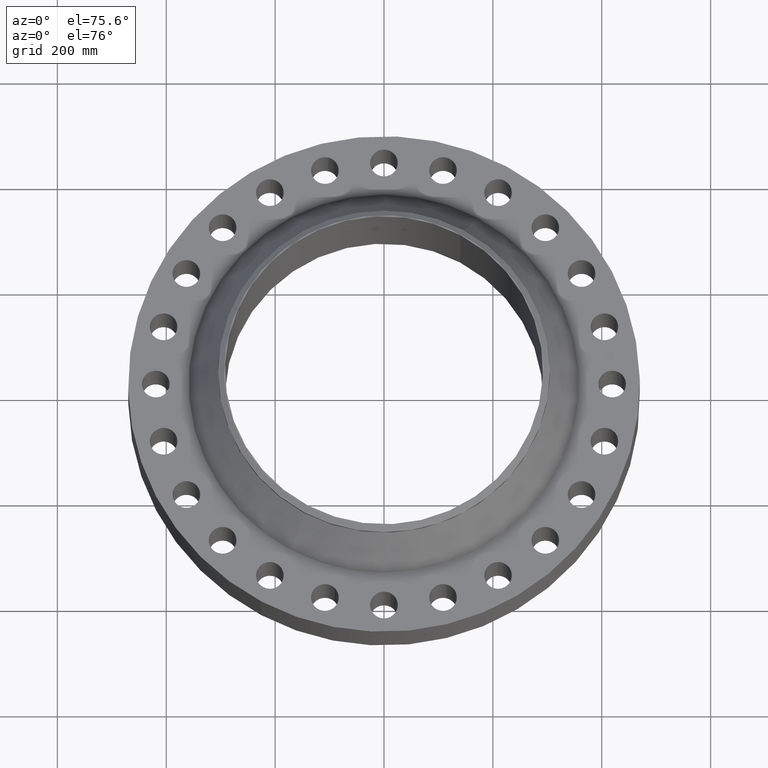
[diagram: clean part render]
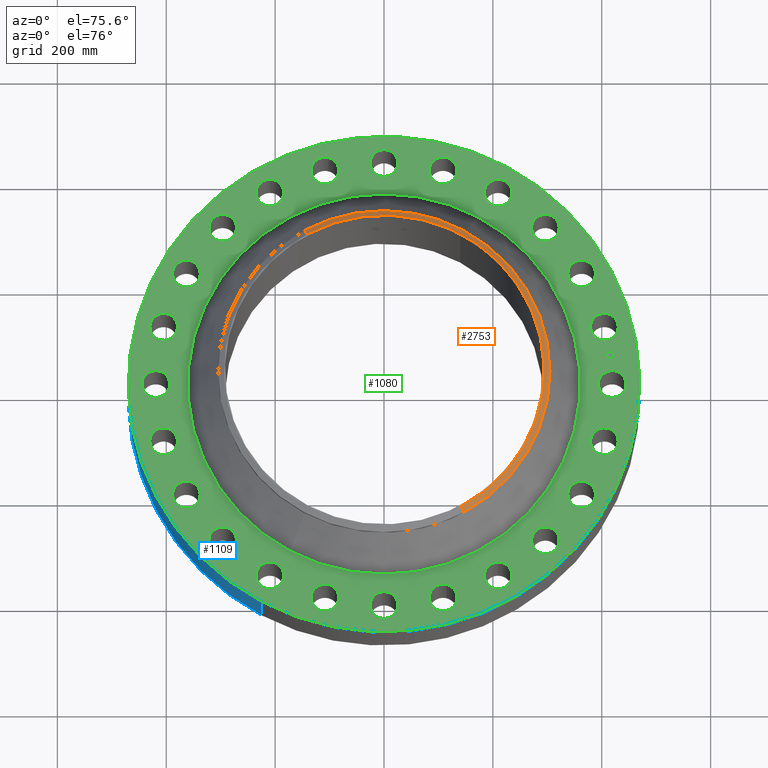
[diagram: same view with three faces highlighted in distinct colors, each labeled with its STEP entity id]
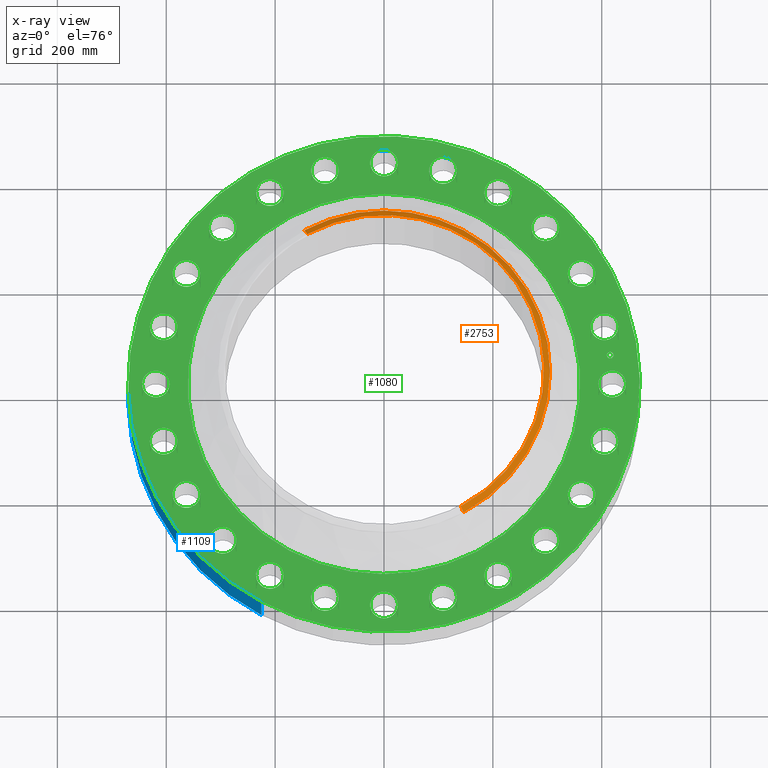
[diagram: x-ray of the same camera — body ghosted, the three highlighted faces saturated]
A machine part, auxiliary view with three faces highlighted in distinct colors.
The next image is the same camera in x-ray (body ghosted, the three faces saturated) — at least one of them is partly hidden behind the body in this view.
Their STEP definitions:

[orange] entity #2753 — the highlighted conical surface has half-angle 52.5 deg.
#2446=AXIS2_PLACEMENT_3D('Circle Axis2P3D',#2444,#2445,$) ;
#2718=AXIS2_PLACEMENT_3D('Cone Axis2P3D',#2715,#2716,#2717) ;
#2736=AXIS2_PLACEMENT_3D('Circle Axis2P3D',#2734,#2735,$) ;
#2743=AXIS2_PLACEMENT_3D('Circle Axis2P3D',#2741,#2742,$) ;
#2444=CARTESIAN_POINT('Axis2P3D Location',(-4.36656485248E-011,-1.65226362775E-011,8.00000000003)) ;
#2448=CARTESIAN_POINT('Vertex',(5.55114373638,-10.1613004509,8.00000000002)) ;
#2450=CARTESIAN_POINT('Vertex',(-5.55114373637,10.1613004509,8.00000000003)) ;
#2715=CARTESIAN_POINT('Axis2P3D Location',(0.,0.,8.00000000003)) ;
#2720=CARTESIAN_POINT('Line Origine',(-5.65212509982,10.3461455968,7.83837797697)) ;
#2724=CARTESIAN_POINT('Vertex',(-5.75310646326,10.5309907427,7.67675595391)) ;
#2727=CARTESIAN_POINT('Line Origine',(5.65212509982,-10.3461455968,7.83837797697)) ;
#2731=CARTESIAN_POINT('Vertex',(5.75310646326,-10.5309907427,7.67675595391)) ;
#2734=CARTESIAN_POINT('Axis2P3D Location',(0.,0.,7.67675595392)) ;
#2738=CARTESIAN_POINT('Vertex',(5.75310646325,10.5309907427,7.67675595391)) ;
#2741=CARTESIAN_POINT('Axis2P3D Location',(0.,0.,7.67675595392)) ;
#2445=DIRECTION('Axis2P3D Direction',(0.,0.,-0.0393700787402)) ;
#2716=DIRECTION('Axis2P3D Direction',(-0.,-0.,-0.0393700787402)) ;
#2717=DIRECTION('Axis2P3D XDirection',(-0.0188750212049,0.0345504945626,0.)) ;
#2721=DIRECTION('Vector Direction',(-0.014974561121,0.02741075027,-0.023966985394)) ;
#2728=DIRECTION('Vector Direction',(0.014974561121,-0.02741075027,-0.023966985394)) ;
#2735=DIRECTION('Axis2P3D Direction',(-0.,0.,-0.0393700787402)) ;
#2742=DIRECTION('Axis2P3D Direction',(-0.,0.,-0.0393700787402)) ;
#2722=VECTOR('Line Direction',#2721,0.0393700787402) ;
#2729=VECTOR('Line Direction',#2728,0.0393700787402) ;
#2747=ORIENTED_EDGE('',*,*,#2726,.F.) ;
#2748=ORIENTED_EDGE('',*,*,#2452,.F.) ;
#2749=ORIENTED_EDGE('',*,*,#2733,.T.) ;
#2750=ORIENTED_EDGE('',*,*,#2740,.T.) ;
#2751=ORIENTED_EDGE('',*,*,#2745,.F.) ;
#2753=ADVANCED_FACE('PartBody',(#2752),#2719,.T.) ;
#2447=CIRCLE('generated circle',#2446,11.5787401575) ;
#2737=CIRCLE('generated circle',#2736,12.) ;
#2744=CIRCLE('generated circle',#2743,12.) ;
#2719=CONICAL_SURFACE('Cone',#2718,11.5787401575,0.916297857297) ;
#2452=EDGE_CURVE('',#2449,#2451,#2447,.F.) ;
#2726=EDGE_CURVE('',#2451,#2725,#2723,.T.) ;
#2733=EDGE_CURVE('',#2449,#2732,#2730,.T.) ;
#2740=EDGE_CURVE('',#2732,#2739,#2737,.F.) ;
#2745=EDGE_CURVE('',#2725,#2739,#2744,.T.) ;
#2746=EDGE_LOOP('',(#2747,#2748,#2749,#2750,#2751)) ;
#2752=FACE_OUTER_BOUND('',#2746,.T.) ;
#2723=LINE('Line',#2720,#2722) ;
#2730=LINE('Line',#2727,#2729) ;
#2449=VERTEX_POINT('',#2448) ;
#2451=VERTEX_POINT('',#2450) ;
#2725=VERTEX_POINT('',#2724) ;
#2732=VERTEX_POINT('',#2731) ;
#2739=VERTEX_POINT('',#2738) ;

[blue] entity #1109 — the highlighted cylindrical surface (partial cylindrical patch) has radius 469.9 mm, axis along (0, 0, -1).
#143=AXIS2_PLACEMENT_3D('Circle Axis2P3D',#141,#142,$) ;
#619=AXIS2_PLACEMENT_3D('Circle Axis2P3D',#617,#618,$) ;
#1091=AXIS2_PLACEMENT_3D('Cylinder Axis2P3D',#1088,#1089,#1090) ;
#141=CARTESIAN_POINT('Axis2P3D Location',(2.23792987641E-015,1.466739241E-011,0.)) ;
#145=CARTESIAN_POINT('Vertex',(-8.86937246424,-16.2352773951,3.46649743031E-011)) ;
#147=CARTESIAN_POINT('Vertex',(8.86937246423,16.2352773951,3.46649743031E-011)) ;
#612=CARTESIAN_POINT('Vertex',(8.86937246423,16.2352773951,4.00000000002)) ;
#614=CARTESIAN_POINT('Vertex',(-8.86937246423,-16.2352773951,4.00000000002)) ;
#617=CARTESIAN_POINT('Axis2P3D Location',(2.23792987641E-015,1.19997799973E-011,4.00000000002)) ;
#1088=CARTESIAN_POINT('Axis2P3D Location',(0.,0.,4.00000000002)) ;
#1093=CARTESIAN_POINT('Line Origine',(-8.86937246423,-16.2352773951,2.00000000003)) ;
#1098=CARTESIAN_POINT('Line Origine',(8.86937246423,16.2352773951,2.00000000003)) ;
#142=DIRECTION('Axis2P3D Direction',(0.,0.,-0.0393700787402)) ;
#618=DIRECTION('Axis2P3D Direction',(0.,0.,-0.0393700787402)) ;
#1089=DIRECTION('Axis2P3D Direction',(0.,0.,-0.0393700787402)) ;
#1090=DIRECTION('Axis2P3D XDirection',(-0.0188750212049,-0.0345504945626,0.)) ;
#1094=DIRECTION('Vector Direction',(0.,0.,-0.0393700787402)) ;
#1099=DIRECTION('Vector Direction',(0.,0.,-0.0393700787402)) ;
#1095=VECTOR('Line Direction',#1094,0.0393700787402) ;
#1100=VECTOR('Line Direction',#1099,0.0393700787402) ;
#1104=ORIENTED_EDGE('',*,*,#149,.F.) ;
#1105=ORIENTED_EDGE('',*,*,#1097,.T.) ;
#1106=ORIENTED_EDGE('',*,*,#621,.T.) ;
#1107=ORIENTED_EDGE('',*,*,#1102,.F.) ;
#1109=ADVANCED_FACE('PartBody',(#1108),#1092,.T.) ;
#144=CIRCLE('generated circle',#143,18.5000000001) ;
#620=CIRCLE('generated circle',#619,18.5000000001) ;
#1092=CYLINDRICAL_SURFACE('generated cylinder',#1091,18.5000000001) ;
#149=EDGE_CURVE('',#146,#148,#144,.T.) ;
#621=EDGE_CURVE('',#615,#613,#620,.T.) ;
#1097=EDGE_CURVE('',#146,#615,#1096,.F.) ;
#1102=EDGE_CURVE('',#148,#613,#1101,.F.) ;
#1103=EDGE_LOOP('',(#1104,#1105,#1106,#1107)) ;
#1108=FACE_OUTER_BOUND('',#1103,.T.) ;
#1096=LINE('Line',#1093,#1095) ;
#1101=LINE('Line',#1098,#1100) ;
#146=VERTEX_POINT('',#145) ;
#148=VERTEX_POINT('',#147) ;
#613=VERTEX_POINT('',#612) ;
#615=VERTEX_POINT('',#614) ;

[green] entity #1080 — the highlighted planar face has unit normal (0, 0, -1).
#119=AXIS2_PLACEMENT_3D('Circle Axis2P3D',#117,#118,$) ;
#606=AXIS2_PLACEMENT_3D('Plane Axis2P3D',#603,#604,#605) ;
#610=AXIS2_PLACEMENT_3D('Circle Axis2P3D',#608,#609,$) ;
#619=AXIS2_PLACEMENT_3D('Circle Axis2P3D',#617,#618,$) ;
#632=AXIS2_PLACEMENT_3D('Circle Axis2P3D',#630,#631,$) ;
#641=AXIS2_PLACEMENT_3D('Circle Axis2P3D',#639,#640,$) ;
#650=AXIS2_PLACEMENT_3D('Circle Axis2P3D',#648,#649,$) ;
#659=AXIS2_PLACEMENT_3D('Circle Axis2P3D',#657,#658,$) ;
#668=AXIS2_PLACEMENT_3D('Circle Axis2P3D',#666,#667,$) ;
#677=AXIS2_PLACEMENT_3D('Circle Axis2P3D',#675,#676,$) ;
#686=AXIS2_PLACEMENT_3D('Circle Axis2P3D',#684,#685,$) ;
#695=AXIS2_PLACEMENT_3D('Circle Axis2P3D',#693,#694,$) ;
#704=AXIS2_PLACEMENT_3D('Circle Axis2P3D',#702,#703,$) ;
#713=AXIS2_PLACEMENT_3D('Circle Axis2P3D',#711,#712,$) ;
#722=AXIS2_PLACEMENT_3D('Circle Axis2P3D',#720,#721,$) ;
#731=AXIS2_PLACEMENT_3D('Circle Axis2P3D',#729,#730,$) ;
#740=AXIS2_PLACEMENT_3D('Circle Axis2P3D',#738,#739,$) ;
#749=AXIS2_PLACEMENT_3D('Circle Axis2P3D',#747,#748,$) ;
#758=AXIS2_PLACEMENT_3D('Circle Axis2P3D',#756,#757,$) ;
#767=AXIS2_PLACEMENT_3D('Circle Axis2P3D',#765,#766,$) ;
#776=AXIS2_PLACEMENT_3D('Circle Axis2P3D',#774,#775,$) ;
#785=AXIS2_PLACEMENT_3D('Circle Axis2P3D',#783,#784,$) ;
#794=AXIS2_PLACEMENT_3D('Circle Axis2P3D',#792,#793,$) ;
#803=AXIS2_PLACEMENT_3D('Circle Axis2P3D',#801,#802,$) ;
#812=AXIS2_PLACEMENT_3D('Circle Axis2P3D',#810,#811,$) ;
#821=AXIS2_PLACEMENT_3D('Circle Axis2P3D',#819,#820,$) ;
#830=AXIS2_PLACEMENT_3D('Circle Axis2P3D',#828,#829,$) ;
#839=AXIS2_PLACEMENT_3D('Circle Axis2P3D',#837,#838,$) ;
#848=AXIS2_PLACEMENT_3D('Circle Axis2P3D',#846,#847,$) ;
#857=AXIS2_PLACEMENT_3D('Circle Axis2P3D',#855,#856,$) ;
#866=AXIS2_PLACEMENT_3D('Circle Axis2P3D',#864,#865,$) ;
#875=AXIS2_PLACEMENT_3D('Circle Axis2P3D',#873,#874,$) ;
#884=AXIS2_PLACEMENT_3D('Circle Axis2P3D',#882,#883,$) ;
#893=AXIS2_PLACEMENT_3D('Circle Axis2P3D',#891,#892,$) ;
#902=AXIS2_PLACEMENT_3D('Circle Axis2P3D',#900,#901,$) ;
#911=AXIS2_PLACEMENT_3D('Circle Axis2P3D',#909,#910,$) ;
#920=AXIS2_PLACEMENT_3D('Circle Axis2P3D',#918,#919,$) ;
#929=AXIS2_PLACEMENT_3D('Circle Axis2P3D',#927,#928,$) ;
#938=AXIS2_PLACEMENT_3D('Circle Axis2P3D',#936,#937,$) ;
#947=AXIS2_PLACEMENT_3D('Circle Axis2P3D',#945,#946,$) ;
#956=AXIS2_PLACEMENT_3D('Circle Axis2P3D',#954,#955,$) ;
#965=AXIS2_PLACEMENT_3D('Circle Axis2P3D',#963,#964,$) ;
#974=AXIS2_PLACEMENT_3D('Circle Axis2P3D',#972,#973,$) ;
#983=AXIS2_PLACEMENT_3D('Circle Axis2P3D',#981,#982,$) ;
#992=AXIS2_PLACEMENT_3D('Circle Axis2P3D',#990,#991,$) ;
#1001=AXIS2_PLACEMENT_3D('Circle Axis2P3D',#999,#1000,$) ;
#1010=AXIS2_PLACEMENT_3D('Circle Axis2P3D',#1008,#1009,$) ;
#1019=AXIS2_PLACEMENT_3D('Circle Axis2P3D',#1017,#1018,$) ;
#1028=AXIS2_PLACEMENT_3D('Circle Axis2P3D',#1026,#1027,$) ;
#1037=AXIS2_PLACEMENT_3D('Circle Axis2P3D',#1035,#1036,$) ;
#1046=AXIS2_PLACEMENT_3D('Circle Axis2P3D',#1044,#1045,$) ;
#1055=AXIS2_PLACEMENT_3D('Circle Axis2P3D',#1053,#1054,$) ;
#1064=AXIS2_PLACEMENT_3D('Circle Axis2P3D',#1062,#1063,$) ;
#1073=AXIS2_PLACEMENT_3D('Circle Axis2P3D',#1071,#1072,$) ;
#46=CARTESIAN_POINT('Vertex',(15.6224174382,0.479425538605,4.)) ;
#72=CARTESIAN_POINT('Vertex',(17.377582562,-0.479425538583,4.00000000002)) ;
#76=CARTESIAN_POINT('Control Point',(15.6224174382,0.479425538605,4.00000000002)) ;
#77=CARTESIAN_POINT('Control Point',(15.6977254257,0.617275885072,4.00000000002)) ;
#78=CARTESIAN_POINT('Control Point',(15.8001002654,0.740339542771,4.00000000002)) ;
#79=CARTESIAN_POINT('Control Point',(15.925692449,0.841506455051,4.00000000002)) ;
#80=CARTESIAN_POINT('Control Point',(16.2097770821,0.989144552644,4.00000000001)) ;
#81=CARTESIAN_POINT('Control Point',(16.5285952626,1.0184029596,4.00000000001)) ;
#82=CARTESIAN_POINT('Control Point',(16.688938157,1.00113168466,4.00000000001)) ;
#83=CARTESIAN_POINT('Control Point',(16.9942122275,0.904649414126,4.00000000001)) ;
#84=CARTESIAN_POINT('Control Point',(17.2403395429,0.699899734654,4.00000000001)) ;
#85=CARTESIAN_POINT('Control Point',(17.3415064552,0.574307551114,4.00000000001)) ;
#86=CARTESIAN_POINT('Control Point',(17.4891445527,0.290222918006,4.)) ;
#87=CARTESIAN_POINT('Control Point',(17.5184029597,-0.0285952625476,4.)) ;
#88=CARTESIAN_POINT('Control Point',(17.5011316848,-0.188938156898,4.)) ;
#89=CARTESIAN_POINT('Control Point',(17.4528905495,-0.341575192134,4.)) ;
#90=CARTESIAN_POINT('Control Point',(17.377582562,-0.479425538602,4.)) ;
#117=CARTESIAN_POINT('Axis2P3D Location',(16.5000000001,0.,4.)) ;
#603=CARTESIAN_POINT('Axis2P3D Location',(0.,18.5000000001,4.00000000002)) ;
#608=CARTESIAN_POINT('Axis2P3D Location',(-2.23792987641E-015,1.19997799973E-011,4.00000000002)) ;
#612=CARTESIAN_POINT('Vertex',(8.86937246423,16.2352773951,4.00000000002)) ;
#614=CARTESIAN_POINT('Vertex',(-8.86937246423,-16.2352773951,4.00000000002)) ;
#617=CARTESIAN_POINT('Axis2P3D Location',(2.23792987641E-015,1.19997799973E-011,4.00000000002)) ;
#630=CARTESIAN_POINT('Axis2P3D Location',(-1.1189649382E-015,1.19997799973E-011,4.00000000002)) ;
#634=CARTESIAN_POINT('Vertex',(-6.80397225279,-12.4545876676,4.00000000002)) ;
#636=CARTESIAN_POINT('Vertex',(6.80397225284,12.4545876677,4.00000000002)) ;
#639=CARTESIAN_POINT('Axis2P3D Location',(1.1189649382E-015,1.19997799973E-011,4.00000000002)) ;
#648=CARTESIAN_POINT('Axis2P3D Location',(15.9377761338,-4.27051424422,4.00000000002)) ;
#652=CARTESIAN_POINT('Vertex',(16.661371335,-4.96073883436,4.)) ;
#654=CARTESIAN_POINT('Vertex',(15.2141809327,-3.58028965402,4.)) ;
#657=CARTESIAN_POINT('Axis2P3D Location',(15.9377761338,-4.27051424422,4.00000000002)) ;
#666=CARTESIAN_POINT('Axis2P3D Location',(14.2894191625,-8.25000000005,4.00000000002)) ;
#670=CARTESIAN_POINT('Vertex',(14.8097151857,-9.10398597663,4.)) ;
#672=CARTESIAN_POINT('Vertex',(13.7691231393,-7.39601402343,4.)) ;
#675=CARTESIAN_POINT('Axis2P3D Location',(14.2894191625,-8.25000000003,4.00000000002)) ;
#684=CARTESIAN_POINT('Axis2P3D Location',(11.6672618896,-11.6672618896,4.00000000002)) ;
#688=CARTESIAN_POINT('Vertex',(11.9488014208,-12.6268115196,4.)) ;
#690=CARTESIAN_POINT('Vertex',(11.3857223585,-10.7077122596,4.)) ;
#693=CARTESIAN_POINT('Axis2P3D Location',(11.6672618896,-11.6672618896,4.00000000002)) ;
#702=CARTESIAN_POINT('Axis2P3D Location',(8.24999999999,-14.2894191625,4.00000000002)) ;
#706=CARTESIAN_POINT('Vertex',(8.27359658532,-15.2891407243,4.)) ;
#708=CARTESIAN_POINT('Vertex',(8.22640341474,-13.2896976007,4.)) ;
#711=CARTESIAN_POINT('Axis2P3D Location',(8.25000000007,-14.2894191625,4.00000000002)) ;
#720=CARTESIAN_POINT('Axis2P3D Location',(4.2705142442,-15.9377761338,4.00000000002)) ;
#724=CARTESIAN_POINT('Vertex',(4.03455981537,-16.9095402551,4.)) ;
#726=CARTESIAN_POINT('Vertex',(4.50646867306,-14.9660120125,4.)) ;
#729=CARTESIAN_POINT('Axis2P3D Location',(4.2705142442,-15.9377761338,4.00000000002)) ;
#738=CARTESIAN_POINT('Axis2P3D Location',(-2.79741234551E-016,-16.5000000001,4.00000000002)) ;
#742=CARTESIAN_POINT('Vertex',(-0.479425538595,-17.377582562,4.00000000002)) ;
#744=CARTESIAN_POINT('Vertex',(0.479425538605,-15.6224174382,4.)) ;
#747=CARTESIAN_POINT('Axis2P3D Location',(2.79741234551E-016,-16.5000000001,4.00000000002)) ;
#756=CARTESIAN_POINT('Axis2P3D Location',(-4.27051424423,-15.9377761338,4.00000000002)) ;
#760=CARTESIAN_POINT('Vertex',(-4.96073883436,-16.661371335,4.)) ;
#762=CARTESIAN_POINT('Vertex',(-3.58028965402,-15.2141809327,4.)) ;
#765=CARTESIAN_POINT('Axis2P3D Location',(-4.27051424423,-15.9377761338,4.00000000002)) ;
#774=CARTESIAN_POINT('Axis2P3D Location',(-8.25000000004,-14.2894191625,4.00000000002)) ;
#778=CARTESIAN_POINT('Vertex',(-9.10398597663,-14.8097151857,4.)) ;
#780=CARTESIAN_POINT('Vertex',(-7.39601402343,-13.7691231393,4.)) ;
#783=CARTESIAN_POINT('Axis2P3D Location',(-8.25000000002,-14.2894191625,4.00000000002)) ;
#792=CARTESIAN_POINT('Axis2P3D Location',(-11.6672618896,-11.6672618896,4.00000000002)) ;
#796=CARTESIAN_POINT('Vertex',(-12.6268115196,-11.9488014208,4.)) ;
#798=CARTESIAN_POINT('Vertex',(-10.7077122596,-11.3857223585,4.)) ;
#801=CARTESIAN_POINT('Axis2P3D Location',(-11.6672618896,-11.6672618896,4.00000000002)) ;
#810=CARTESIAN_POINT('Axis2P3D Location',(-14.2894191625,-8.25000000009,4.00000000002)) ;
#814=CARTESIAN_POINT('Vertex',(-15.2891407243,-8.27359658532,4.)) ;
#816=CARTESIAN_POINT('Vertex',(-13.2896976007,-8.22640341474,4.)) ;
#819=CARTESIAN_POINT('Axis2P3D Location',(-14.2894191625,-8.25000000002,4.00000000002)) ;
#828=CARTESIAN_POINT('Axis2P3D Location',(-15.9377761338,-4.27051424417,4.00000000002)) ;
#832=CARTESIAN_POINT('Vertex',(-16.9095402551,-4.03455981537,4.)) ;
#834=CARTESIAN_POINT('Vertex',(-14.9660120125,-4.50646867306,4.)) ;
#837=CARTESIAN_POINT('Axis2P3D Location',(-15.9377761338,-4.27051424424,4.00000000002)) ;
#846=CARTESIAN_POINT('Axis2P3D Location',(-16.5000000001,-8.12368545137E-013,4.00000000002)) ;
#850=CARTESIAN_POINT('Vertex',(-17.377582562,0.479425538607,4.00000000002)) ;
#852=CARTESIAN_POINT('Vertex',(-15.6224174382,-0.479425538605,4.)) ;
#855=CARTESIAN_POINT('Axis2P3D Location',(-16.5000000001,2.48119285398E-011,4.00000000002)) ;
#864=CARTESIAN_POINT('Axis2P3D Location',(-15.9377761338,4.27051424424,4.00000000002)) ;
#868=CARTESIAN_POINT('Vertex',(-16.661371335,4.96073883436,4.)) ;
#870=CARTESIAN_POINT('Vertex',(-15.2141809327,3.58028965402,4.)) ;
#873=CARTESIAN_POINT('Axis2P3D Location',(-15.9377761338,4.27051424424,4.00000000002)) ;
#882=CARTESIAN_POINT('Axis2P3D Location',(-14.2894191625,8.25,4.00000000002)) ;
#886=CARTESIAN_POINT('Vertex',(-14.8097151857,9.10398597663,4.)) ;
#888=CARTESIAN_POINT('Vertex',(-13.7691231393,7.39601402343,4.)) ;
#891=CARTESIAN_POINT('Axis2P3D Location',(-14.2894191625,8.25,4.00000000002)) ;
#900=CARTESIAN_POINT('Axis2P3D Location',(-11.6672618896,11.6672618896,4.00000000002)) ;
#904=CARTESIAN_POINT('Vertex',(-11.9488014208,12.6268115196,4.)) ;
#906=CARTESIAN_POINT('Vertex',(-11.3857223585,10.7077122596,4.)) ;
#909=CARTESIAN_POINT('Axis2P3D Location',(-11.6672618896,11.6672618896,4.00000000002)) ;
#918=CARTESIAN_POINT('Axis2P3D Location',(-8.25000000003,14.2894191625,4.00000000002)) ;
#922=CARTESIAN_POINT('Vertex',(-8.27359658532,15.2891407243,4.)) ;
#924=CARTESIAN_POINT('Vertex',(-8.22640341474,13.2896976007,4.)) ;
#927=CARTESIAN_POINT('Axis2P3D Location',(-8.25000000003,14.2894191625,4.00000000002)) ;
#936=CARTESIAN_POINT('Axis2P3D Location',(-4.27051424419,15.9377761338,4.00000000002)) ;
#940=CARTESIAN_POINT('Vertex',(-4.03455981537,16.9095402551,4.)) ;
#942=CARTESIAN_POINT('Vertex',(-4.50646867306,14.9660120125,4.)) ;
#945=CARTESIAN_POINT('Axis2P3D Location',(-4.27051424419,15.9377761338,4.00000000002)) ;
#954=CARTESIAN_POINT('Axis2P3D Location',(2.79741234551E-016,16.5000000001,4.00000000002)) ;
#958=CARTESIAN_POINT('Vertex',(0.479425538595,17.377582562,4.00000000002)) ;
#960=CARTESIAN_POINT('Vertex',(-0.479425538605,15.6224174382,4.)) ;
#963=CARTESIAN_POINT('Axis2P3D Location',(-2.79741234551E-016,16.5000000001,4.00000000002)) ;
#972=CARTESIAN_POINT('Axis2P3D Location',(4.27051424419,15.9377761338,4.00000000002)) ;
#976=CARTESIAN_POINT('Vertex',(4.96073883436,16.661371335,4.)) ;
#978=CARTESIAN_POINT('Vertex',(3.58028965402,15.2141809327,4.)) ;
#981=CARTESIAN_POINT('Axis2P3D Location',(4.27051424423,15.9377761338,4.00000000002)) ;
#990=CARTESIAN_POINT('Axis2P3D Location',(8.25000000003,14.2894191625,4.00000000002)) ;
#994=CARTESIAN_POINT('Vertex',(9.10398597663,14.8097151857,4.)) ;
#996=CARTESIAN_POINT('Vertex',(7.39601402343,13.7691231393,4.)) ;
#999=CARTESIAN_POINT('Axis2P3D Location',(8.25000000003,14.2894191625,4.00000000002)) ;
#1008=CARTESIAN_POINT('Axis2P3D Location',(11.6672618896,11.6672618896,4.00000000002)) ;
#1012=CARTESIAN_POINT('Vertex',(12.6268115196,11.9488014208,4.)) ;
#1014=CARTESIAN_POINT('Vertex',(10.7077122596,11.3857223585,4.)) ;
#1017=CARTESIAN_POINT('Axis2P3D Location',(11.6672618896,11.6672618896,4.00000000002)) ;
#1026=CARTESIAN_POINT('Axis2P3D Location',(14.2894191625,8.25000000004,4.00000000002)) ;
#1030=CARTESIAN_POINT('Vertex',(15.2891407243,8.27359658532,4.)) ;
#1032=CARTESIAN_POINT('Vertex',(13.2896976007,8.22640341474,4.)) ;
#1035=CARTESIAN_POINT('Axis2P3D Location',(14.2894191625,8.24999999997,4.00000000002)) ;
#1044=CARTESIAN_POINT('Axis2P3D Location',(15.9377761338,4.2705142442,4.00000000002)) ;
#1048=CARTESIAN_POINT('Vertex',(16.9095402551,4.03455981537,4.)) ;
#1050=CARTESIAN_POINT('Vertex',(14.9660120125,4.50646867306,4.)) ;
#1053=CARTESIAN_POINT('Axis2P3D Location',(15.9377761338,4.2705142442,4.00000000002)) ;
#1062=CARTESIAN_POINT('Axis2P3D Location',(16.3588402127,2.15368217166,4.00000000002)) ;
#1066=CARTESIAN_POINT('Vertex',(16.3265349802,2.39906477486,4.00000000002)) ;
#1068=CARTESIAN_POINT('Vertex',(16.3911454453,1.90829956847,4.00000000002)) ;
#1071=CARTESIAN_POINT('Axis2P3D Location',(16.3588402127,2.15368217166,4.00000000002)) ;
#118=DIRECTION('Axis2P3D Direction',(0.,-0.,-0.0393700787402)) ;
#604=DIRECTION('Axis2P3D Direction',(0.,0.,-0.0393700787402)) ;
#605=DIRECTION('Axis2P3D XDirection',(0.0393700787402,0.,0.)) ;
#609=DIRECTION('Axis2P3D Direction',(0.,0.,-0.0393700787402)) ;
#618=DIRECTION('Axis2P3D Direction',(0.,0.,-0.0393700787402)) ;
#631=DIRECTION('Axis2P3D Direction',(0.,0.,-0.0393700787402)) ;
#640=DIRECTION('Axis2P3D Direction',(0.,0.,-0.0393700787402)) ;
#649=DIRECTION('Axis2P3D Direction',(0.,0.,-0.0393700787402)) ;
#658=DIRECTION('Axis2P3D Direction',(0.,0.,-0.0393700787402)) ;
#667=DIRECTION('Axis2P3D Direction',(0.,0.,-0.0393700787402)) ;
#676=DIRECTION('Axis2P3D Direction',(0.,0.,-0.0393700787402)) ;
#685=DIRECTION('Axis2P3D Direction',(0.,0.,-0.0393700787402)) ;
#694=DIRECTION('Axis2P3D Direction',(0.,0.,-0.0393700787402)) ;
#703=DIRECTION('Axis2P3D Direction',(0.,0.,-0.0393700787402)) ;
#712=DIRECTION('Axis2P3D Direction',(0.,0.,-0.0393700787402)) ;
#721=DIRECTION('Axis2P3D Direction',(0.,0.,-0.0393700787402)) ;
#730=DIRECTION('Axis2P3D Direction',(0.,0.,-0.0393700787402)) ;
#739=DIRECTION('Axis2P3D Direction',(0.,0.,-0.0393700787402)) ;
#748=DIRECTION('Axis2P3D Direction',(0.,0.,-0.0393700787402)) ;
#757=DIRECTION('Axis2P3D Direction',(0.,0.,-0.0393700787402)) ;
#766=DIRECTION('Axis2P3D Direction',(0.,0.,-0.0393700787402)) ;
#775=DIRECTION('Axis2P3D Direction',(0.,0.,-0.0393700787402)) ;
#784=DIRECTION('Axis2P3D Direction',(0.,0.,-0.0393700787402)) ;
#793=DIRECTION('Axis2P3D Direction',(0.,0.,-0.0393700787402)) ;
#802=DIRECTION('Axis2P3D Direction',(0.,0.,-0.0393700787402)) ;
#811=DIRECTION('Axis2P3D Direction',(0.,0.,-0.0393700787402)) ;
#820=DIRECTION('Axis2P3D Direction',(0.,0.,-0.0393700787402)) ;
#829=DIRECTION('Axis2P3D Direction',(0.,0.,-0.0393700787402)) ;
#838=DIRECTION('Axis2P3D Direction',(0.,0.,-0.0393700787402)) ;
#847=DIRECTION('Axis2P3D Direction',(0.,0.,-0.0393700787402)) ;
#856=DIRECTION('Axis2P3D Direction',(0.,0.,-0.0393700787402)) ;
#865=DIRECTION('Axis2P3D Direction',(0.,0.,-0.0393700787402)) ;
#874=DIRECTION('Axis2P3D Direction',(0.,0.,-0.0393700787402)) ;
#883=DIRECTION('Axis2P3D Direction',(0.,0.,-0.0393700787402)) ;
#892=DIRECTION('Axis2P3D Direction',(0.,0.,-0.0393700787402)) ;
#901=DIRECTION('Axis2P3D Direction',(0.,0.,-0.0393700787402)) ;
#910=DIRECTION('Axis2P3D Direction',(0.,0.,-0.0393700787402)) ;
#919=DIRECTION('Axis2P3D Direction',(0.,0.,-0.0393700787402)) ;
#928=DIRECTION('Axis2P3D Direction',(0.,0.,-0.0393700787402)) ;
#937=DIRECTION('Axis2P3D Direction',(0.,0.,-0.0393700787402)) ;
#946=DIRECTION('Axis2P3D Direction',(0.,0.,-0.0393700787402)) ;
#955=DIRECTION('Axis2P3D Direction',(0.,0.,-0.0393700787402)) ;
#964=DIRECTION('Axis2P3D Direction',(0.,0.,-0.0393700787402)) ;
#973=DIRECTION('Axis2P3D Direction',(0.,0.,-0.0393700787402)) ;
#982=DIRECTION('Axis2P3D Direction',(0.,0.,-0.0393700787402)) ;
#991=DIRECTION('Axis2P3D Direction',(0.,0.,-0.0393700787402)) ;
#1000=DIRECTION('Axis2P3D Direction',(0.,0.,-0.0393700787402)) ;
#1009=DIRECTION('Axis2P3D Direction',(0.,0.,-0.0393700787402)) ;
#1018=DIRECTION('Axis2P3D Direction',(0.,0.,-0.0393700787402)) ;
#1027=DIRECTION('Axis2P3D Direction',(0.,0.,-0.0393700787402)) ;
#1036=DIRECTION('Axis2P3D Direction',(0.,0.,-0.0393700787402)) ;
#1045=DIRECTION('Axis2P3D Direction',(0.,0.,-0.0393700787402)) ;
#1054=DIRECTION('Axis2P3D Direction',(0.,0.,-0.0393700787402)) ;
#1063=DIRECTION('Axis2P3D Direction',(0.,0.,-0.0393700787402)) ;
#1072=DIRECTION('Axis2P3D Direction',(0.,0.,-0.0393700787402)) ;
#623=ORIENTED_EDGE('',*,*,#616,.F.) ;
#624=ORIENTED_EDGE('',*,*,#621,.F.) ;
#627=ORIENTED_EDGE('',*,*,#91,.T.) ;
#628=ORIENTED_EDGE('',*,*,#121,.T.) ;
#645=ORIENTED_EDGE('',*,*,#638,.T.) ;
#646=ORIENTED_EDGE('',*,*,#643,.T.) ;
#663=ORIENTED_EDGE('',*,*,#656,.T.) ;
#664=ORIENTED_EDGE('',*,*,#661,.T.) ;
#681=ORIENTED_EDGE('',*,*,#674,.T.) ;
#682=ORIENTED_EDGE('',*,*,#679,.T.) ;
#699=ORIENTED_EDGE('',*,*,#692,.T.) ;
#700=ORIENTED_EDGE('',*,*,#697,.T.) ;
#717=ORIENTED_EDGE('',*,*,#710,.T.) ;
#718=ORIENTED_EDGE('',*,*,#715,.T.) ;
#735=ORIENTED_EDGE('',*,*,#728,.T.) ;
#736=ORIENTED_EDGE('',*,*,#733,.T.) ;
#753=ORIENTED_EDGE('',*,*,#746,.T.) ;
#754=ORIENTED_EDGE('',*,*,#751,.T.) ;
#771=ORIENTED_EDGE('',*,*,#764,.T.) ;
#772=ORIENTED_EDGE('',*,*,#769,.T.) ;
#789=ORIENTED_EDGE('',*,*,#782,.T.) ;
#790=ORIENTED_EDGE('',*,*,#787,.T.) ;
#807=ORIENTED_EDGE('',*,*,#800,.T.) ;
#808=ORIENTED_EDGE('',*,*,#805,.T.) ;
#825=ORIENTED_EDGE('',*,*,#818,.T.) ;
#826=ORIENTED_EDGE('',*,*,#823,.T.) ;
#843=ORIENTED_EDGE('',*,*,#836,.T.) ;
#844=ORIENTED_EDGE('',*,*,#841,.T.) ;
#861=ORIENTED_EDGE('',*,*,#854,.T.) ;
#862=ORIENTED_EDGE('',*,*,#859,.T.) ;
#879=ORIENTED_EDGE('',*,*,#872,.T.) ;
#880=ORIENTED_EDGE('',*,*,#877,.T.) ;
#897=ORIENTED_EDGE('',*,*,#890,.T.) ;
#898=ORIENTED_EDGE('',*,*,#895,.T.) ;
#915=ORIENTED_EDGE('',*,*,#908,.T.) ;
#916=ORIENTED_EDGE('',*,*,#913,.T.) ;
#933=ORIENTED_EDGE('',*,*,#926,.T.) ;
#934=ORIENTED_EDGE('',*,*,#931,.T.) ;
#951=ORIENTED_EDGE('',*,*,#944,.T.) ;
#952=ORIENTED_EDGE('',*,*,#949,.T.) ;
#969=ORIENTED_EDGE('',*,*,#962,.T.) ;
#970=ORIENTED_EDGE('',*,*,#967,.T.) ;
#987=ORIENTED_EDGE('',*,*,#980,.T.) ;
#988=ORIENTED_EDGE('',*,*,#985,.T.) ;
#1005=ORIENTED_EDGE('',*,*,#998,.T.) ;
#1006=ORIENTED_EDGE('',*,*,#1003,.T.) ;
#1023=ORIENTED_EDGE('',*,*,#1016,.T.) ;
#1024=ORIENTED_EDGE('',*,*,#1021,.T.) ;
#1041=ORIENTED_EDGE('',*,*,#1034,.T.) ;
#1042=ORIENTED_EDGE('',*,*,#1039,.T.) ;
#1059=ORIENTED_EDGE('',*,*,#1052,.T.) ;
#1060=ORIENTED_EDGE('',*,*,#1057,.T.) ;
#1077=ORIENTED_EDGE('',*,*,#1070,.T.) ;
#1078=ORIENTED_EDGE('',*,*,#1075,.T.) ;
#629=FACE_BOUND('',#626,.T.) ;
#647=FACE_BOUND('',#644,.T.) ;
#665=FACE_BOUND('',#662,.T.) ;
#683=FACE_BOUND('',#680,.T.) ;
#701=FACE_BOUND('',#698,.T.) ;
#719=FACE_BOUND('',#716,.T.) ;
#737=FACE_BOUND('',#734,.T.) ;
#755=FACE_BOUND('',#752,.T.) ;
#773=FACE_BOUND('',#770,.T.) ;
#791=FACE_BOUND('',#788,.T.) ;
#809=FACE_BOUND('',#806,.T.) ;
#827=FACE_BOUND('',#824,.T.) ;
#845=FACE_BOUND('',#842,.T.) ;
#863=FACE_BOUND('',#860,.T.) ;
#881=FACE_BOUND('',#878,.T.) ;
#899=FACE_BOUND('',#896,.T.) ;
#917=FACE_BOUND('',#914,.T.) ;
#935=FACE_BOUND('',#932,.T.) ;
#953=FACE_BOUND('',#950,.T.) ;
#971=FACE_BOUND('',#968,.T.) ;
#989=FACE_BOUND('',#986,.T.) ;
#1007=FACE_BOUND('',#1004,.T.) ;
#1025=FACE_BOUND('',#1022,.T.) ;
#1043=FACE_BOUND('',#1040,.T.) ;
#1061=FACE_BOUND('',#1058,.T.) ;
#1079=FACE_BOUND('',#1076,.T.) ;
#1080=ADVANCED_FACE('PartBody',(#625,#629,#647,#665,#683,#701,#719,#737,#755,#773,#791,#809,#827,#845,#863,#881,#899,#917,#935,#953,#971,#989,#1007,#1025,#1043,#1061,#1079),#607,.F.) ;
#75=B_SPLINE_CURVE_WITH_KNOTS('',5,(#76,#77,#78,#79,#80,#81,#82,#83,#84,#85,#86,#87,#88,#89,#90),.UNSPECIFIED.,.F.,.U.,(6,3,3,3,6),(-39.8982267005,-19.9491133503,0.,19.9491133503,39.8982267005),.UNSPECIFIED.) ;
#120=CIRCLE('generated circle',#119,1.) ;
#611=CIRCLE('generated circle',#610,18.5000000001) ;
#620=CIRCLE('generated circle',#619,18.5000000001) ;
#633=CIRCLE('generated circle',#632,14.1919270146) ;
#642=CIRCLE('generated circle',#641,14.1919270146) ;
#651=CIRCLE('generated circle',#650,0.999999999998) ;
#660=CIRCLE('generated circle',#659,0.999999999998) ;
#669=CIRCLE('generated circle',#668,0.999999999991) ;
#678=CIRCLE('generated circle',#677,0.999999999991) ;
#687=CIRCLE('generated circle',#686,1.00000000001) ;
#696=CIRCLE('generated circle',#695,1.00000000001) ;
#705=CIRCLE('generated circle',#704,0.999999999991) ;
#714=CIRCLE('generated circle',#713,0.999999999991) ;
#723=CIRCLE('generated circle',#722,0.999999999985) ;
#732=CIRCLE('generated circle',#731,0.999999999985) ;
#741=CIRCLE('generated circle',#740,0.999999999991) ;
#750=CIRCLE('generated circle',#749,0.999999999991) ;
#759=CIRCLE('generated circle',#758,0.999999999998) ;
#768=CIRCLE('generated circle',#767,0.999999999998) ;
#777=CIRCLE('generated circle',#776,0.999999999978) ;
#786=CIRCLE('generated circle',#785,0.999999999978) ;
#795=CIRCLE('generated circle',#794,1.00000000001) ;
#804=CIRCLE('generated circle',#803,1.00000000001) ;
#813=CIRCLE('generated circle',#812,1.00000000003) ;
#822=CIRCLE('generated circle',#821,1.00000000003) ;
#831=CIRCLE('generated circle',#830,0.999999999985) ;
#840=CIRCLE('generated circle',#839,0.999999999985) ;
#849=CIRCLE('generated circle',#848,1.00000000002) ;
#858=CIRCLE('generated circle',#857,1.00000000002) ;
#867=CIRCLE('generated circle',#866,0.999999999998) ;
#876=CIRCLE('generated circle',#875,0.999999999998) ;
#885=CIRCLE('generated circle',#884,0.999999999991) ;
#894=CIRCLE('generated circle',#893,0.999999999991) ;
#903=CIRCLE('generated circle',#902,1.00000000001) ;
#912=CIRCLE('generated circle',#911,1.00000000001) ;
#921=CIRCLE('generated circle',#920,1.00000000003) ;
#930=CIRCLE('generated circle',#929,1.00000000003) ;
#939=CIRCLE('generated circle',#938,0.999999999985) ;
#948=CIRCLE('generated circle',#947,0.999999999985) ;
#957=CIRCLE('generated circle',#956,0.999999999991) ;
#966=CIRCLE('generated circle',#965,0.999999999991) ;
#975=CIRCLE('generated circle',#974,1.00000000002) ;
#984=CIRCLE('generated circle',#983,1.00000000002) ;
#993=CIRCLE('generated circle',#992,0.999999999959) ;
#1002=CIRCLE('generated circle',#1001,0.999999999959) ;
#1011=CIRCLE('generated circle',#1010,0.999999999999) ;
#1020=CIRCLE('generated circle',#1019,0.999999999999) ;
#1029=CIRCLE('generated circle',#1028,1.00000000003) ;
#1038=CIRCLE('generated circle',#1037,1.00000000003) ;
#1047=CIRCLE('generated circle',#1046,0.999999999985) ;
#1056=CIRCLE('generated circle',#1055,0.999999999985) ;
#1065=CIRCLE('generated circle',#1064,0.247500000007) ;
#1074=CIRCLE('generated circle',#1073,0.247500000007) ;
#91=EDGE_CURVE('',#47,#73,#75,.T.) ;
#121=EDGE_CURVE('',#73,#47,#120,.T.) ;
#616=EDGE_CURVE('',#613,#615,#611,.T.) ;
#621=EDGE_CURVE('',#615,#613,#620,.T.) ;
#638=EDGE_CURVE('',#635,#637,#633,.T.) ;
#643=EDGE_CURVE('',#637,#635,#642,.T.) ;
#656=EDGE_CURVE('',#653,#655,#651,.T.) ;
#661=EDGE_CURVE('',#655,#653,#660,.T.) ;
#674=EDGE_CURVE('',#671,#673,#669,.T.) ;
#679=EDGE_CURVE('',#673,#671,#678,.T.) ;
#692=EDGE_CURVE('',#689,#691,#687,.T.) ;
#697=EDGE_CURVE('',#691,#689,#696,.T.) ;
#710=EDGE_CURVE('',#707,#709,#705,.T.) ;
#715=EDGE_CURVE('',#709,#707,#714,.T.) ;
#728=EDGE_CURVE('',#725,#727,#723,.T.) ;
#733=EDGE_CURVE('',#727,#725,#732,.T.) ;
#746=EDGE_CURVE('',#743,#745,#741,.T.) ;
#751=EDGE_CURVE('',#745,#743,#750,.T.) ;
#764=EDGE_CURVE('',#761,#763,#759,.T.) ;
#769=EDGE_CURVE('',#763,#761,#768,.T.) ;
#782=EDGE_CURVE('',#779,#781,#777,.T.) ;
#787=EDGE_CURVE('',#781,#779,#786,.T.) ;
#800=EDGE_CURVE('',#797,#799,#795,.T.) ;
#805=EDGE_CURVE('',#799,#797,#804,.T.) ;
#818=EDGE_CURVE('',#815,#817,#813,.T.) ;
#823=EDGE_CURVE('',#817,#815,#822,.T.) ;
#836=EDGE_CURVE('',#833,#835,#831,.T.) ;
#841=EDGE_CURVE('',#835,#833,#840,.T.) ;
#854=EDGE_CURVE('',#851,#853,#849,.T.) ;
#859=EDGE_CURVE('',#853,#851,#858,.T.) ;
#872=EDGE_CURVE('',#869,#871,#867,.T.) ;
#877=EDGE_CURVE('',#871,#869,#876,.T.) ;
#890=EDGE_CURVE('',#887,#889,#885,.T.) ;
#895=EDGE_CURVE('',#889,#887,#894,.T.) ;
#908=EDGE_CURVE('',#905,#907,#903,.T.) ;
#913=EDGE_CURVE('',#907,#905,#912,.T.) ;
#926=EDGE_CURVE('',#923,#925,#921,.T.) ;
#931=EDGE_CURVE('',#925,#923,#930,.T.) ;
#944=EDGE_CURVE('',#941,#943,#939,.T.) ;
#949=EDGE_CURVE('',#943,#941,#948,.T.) ;
#962=EDGE_CURVE('',#959,#961,#957,.T.) ;
#967=EDGE_CURVE('',#961,#959,#966,.T.) ;
#980=EDGE_CURVE('',#977,#979,#975,.T.) ;
#985=EDGE_CURVE('',#979,#977,#984,.T.) ;
#998=EDGE_CURVE('',#995,#997,#993,.T.) ;
#1003=EDGE_CURVE('',#997,#995,#1002,.T.) ;
#1016=EDGE_CURVE('',#1013,#1015,#1011,.T.) ;
#1021=EDGE_CURVE('',#1015,#1013,#1020,.T.) ;
#1034=EDGE_CURVE('',#1031,#1033,#1029,.T.) ;
#1039=EDGE_CURVE('',#1033,#1031,#1038,.T.) ;
#1052=EDGE_CURVE('',#1049,#1051,#1047,.T.) ;
#1057=EDGE_CURVE('',#1051,#1049,#1056,.T.) ;
#1070=EDGE_CURVE('',#1067,#1069,#1065,.T.) ;
#1075=EDGE_CURVE('',#1069,#1067,#1074,.T.) ;
#622=EDGE_LOOP('',(#623,#624)) ;
#626=EDGE_LOOP('',(#627,#628)) ;
#644=EDGE_LOOP('',(#645,#646)) ;
#662=EDGE_LOOP('',(#663,#664)) ;
#680=EDGE_LOOP('',(#681,#682)) ;
#698=EDGE_LOOP('',(#699,#700)) ;
#716=EDGE_LOOP('',(#717,#718)) ;
#734=EDGE_LOOP('',(#735,#736)) ;
#752=EDGE_LOOP('',(#753,#754)) ;
#770=EDGE_LOOP('',(#771,#772)) ;
#788=EDGE_LOOP('',(#789,#790)) ;
#806=EDGE_LOOP('',(#807,#808)) ;
#824=EDGE_LOOP('',(#825,#826)) ;
#842=EDGE_LOOP('',(#843,#844)) ;
#860=EDGE_LOOP('',(#861,#862)) ;
#878=EDGE_LOOP('',(#879,#880)) ;
#896=EDGE_LOOP('',(#897,#898)) ;
#914=EDGE_LOOP('',(#915,#916)) ;
#932=EDGE_LOOP('',(#933,#934)) ;
#950=EDGE_LOOP('',(#951,#952)) ;
#968=EDGE_LOOP('',(#969,#970)) ;
#986=EDGE_LOOP('',(#987,#988)) ;
#1004=EDGE_LOOP('',(#1005,#1006)) ;
#1022=EDGE_LOOP('',(#1023,#1024)) ;
#1040=EDGE_LOOP('',(#1041,#1042)) ;
#1058=EDGE_LOOP('',(#1059,#1060)) ;
#1076=EDGE_LOOP('',(#1077,#1078)) ;
#625=FACE_OUTER_BOUND('',#622,.T.) ;
#607=PLANE('',#606) ;
#47=VERTEX_POINT('',#46) ;
#73=VERTEX_POINT('',#72) ;
#613=VERTEX_POINT('',#612) ;
#615=VERTEX_POINT('',#614) ;
#635=VERTEX_POINT('',#634) ;
#637=VERTEX_POINT('',#636) ;
#653=VERTEX_POINT('',#652) ;
#655=VERTEX_POINT('',#654) ;
#671=VERTEX_POINT('',#670) ;
#673=VERTEX_POINT('',#672) ;
#689=VERTEX_POINT('',#688) ;
#691=VERTEX_POINT('',#690) ;
#707=VERTEX_POINT('',#706) ;
#709=VERTEX_POINT('',#708) ;
#725=VERTEX_POINT('',#724) ;
#727=VERTEX_POINT('',#726) ;
#743=VERTEX_POINT('',#742) ;
#745=VERTEX_POINT('',#744) ;
#761=VERTEX_POINT('',#760) ;
#763=VERTEX_POINT('',#762) ;
#779=VERTEX_POINT('',#778) ;
#781=VERTEX_POINT('',#780) ;
#797=VERTEX_POINT('',#796) ;
#799=VERTEX_POINT('',#798) ;
#815=VERTEX_POINT('',#814) ;
#817=VERTEX_POINT('',#816) ;
#833=VERTEX_POINT('',#832) ;
#835=VERTEX_POINT('',#834) ;
#851=VERTEX_POINT('',#850) ;
#853=VERTEX_POINT('',#852) ;
#869=VERTEX_POINT('',#868) ;
#871=VERTEX_POINT('',#870) ;
#887=VERTEX_POINT('',#886) ;
#889=VERTEX_POINT('',#888) ;
#905=VERTEX_POINT('',#904) ;
#907=VERTEX_POINT('',#906) ;
#923=VERTEX_POINT('',#922) ;
#925=VERTEX_POINT('',#924) ;
#941=VERTEX_POINT('',#940) ;
#943=VERTEX_POINT('',#942) ;
#959=VERTEX_POINT('',#958) ;
#961=VERTEX_POINT('',#960) ;
#977=VERTEX_POINT('',#976) ;
#979=VERTEX_POINT('',#978) ;
#995=VERTEX_POINT('',#994) ;
#997=VERTEX_POINT('',#996) ;
#1013=VERTEX_POINT('',#1012) ;
#1015=VERTEX_POINT('',#1014) ;
#1031=VERTEX_POINT('',#1030) ;
#1033=VERTEX_POINT('',#1032) ;
#1049=VERTEX_POINT('',#1048) ;
#1051=VERTEX_POINT('',#1050) ;
#1067=VERTEX_POINT('',#1066) ;
#1069=VERTEX_POINT('',#1068) ;